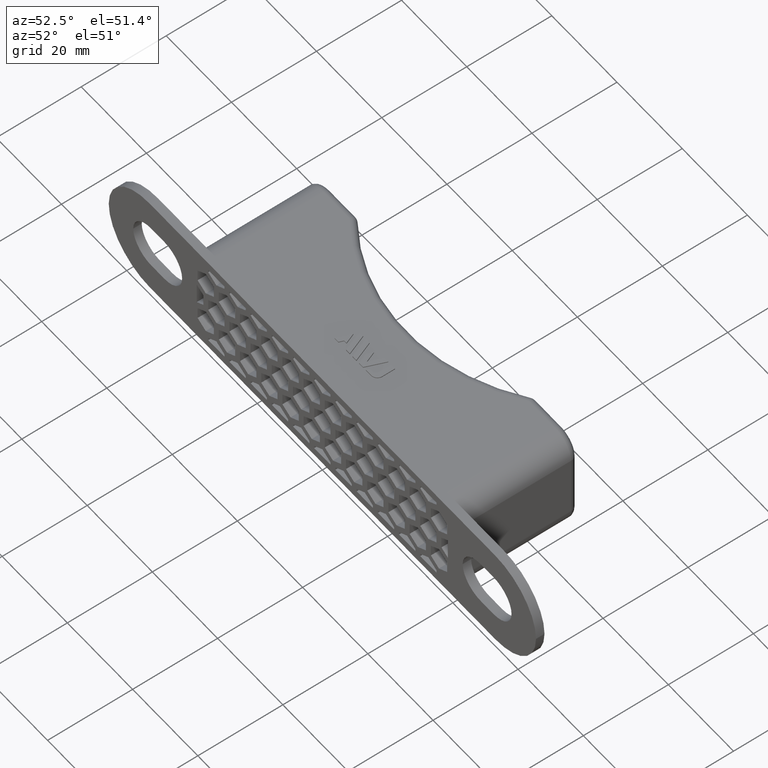
[diagram: clean part render]
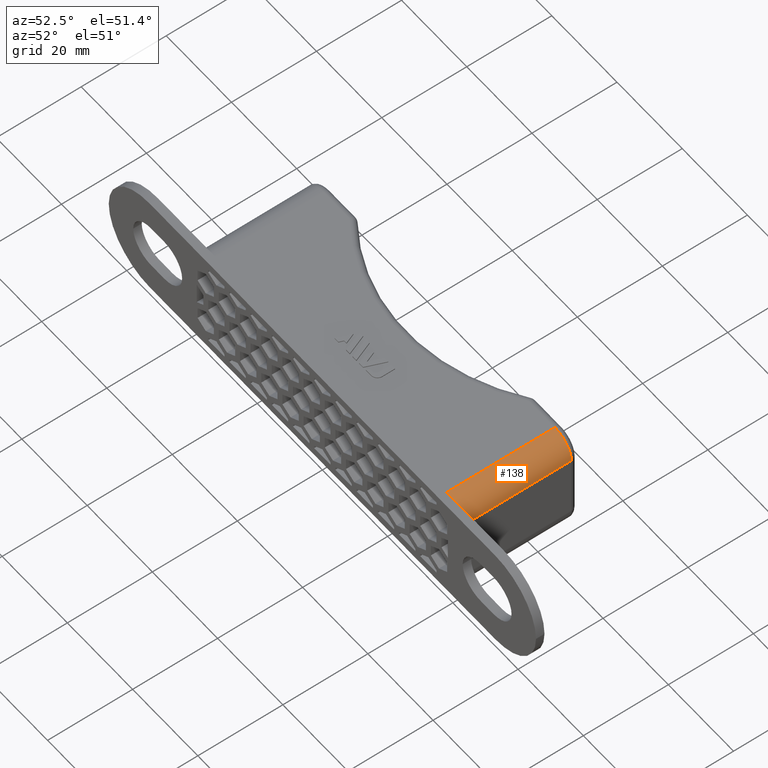
[diagram: same view with one face highlighted and labeled with its STEP entity id]
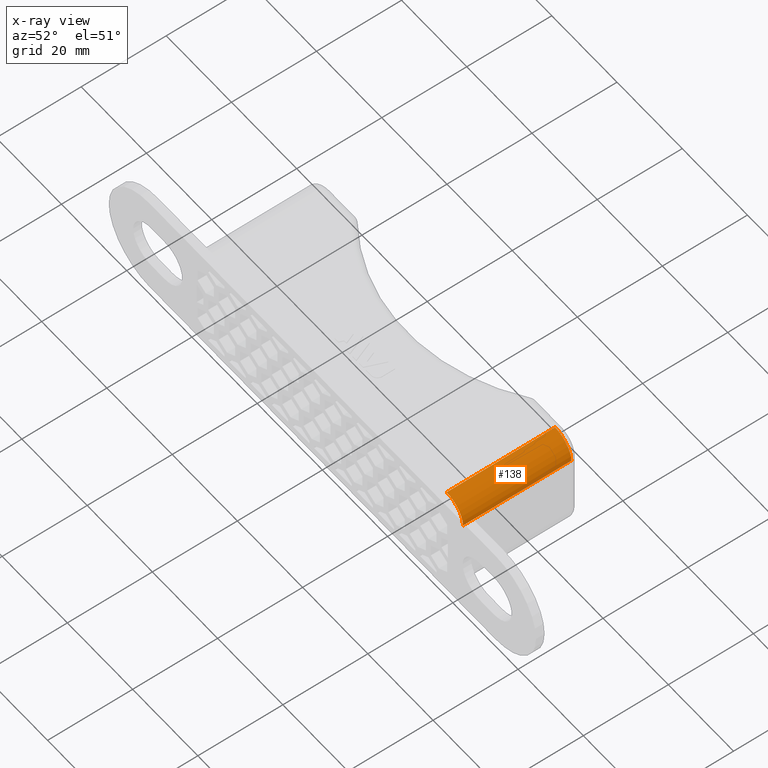
[diagram: x-ray of the same camera — body ghosted, the highlighted face saturated]
A machine part, auxiliary view. The second image highlights one B-rep face of the part: STEP entity #138.
The next image is the same camera in x-ray: the body ghosted, the highlighted face saturated — about 0% of this face is hidden behind the body in this view.
In plain terms, the highlighted cylindrical surface (edge-blend (fillet) strip) has radius 5 mm, axis along (0, 1, 0).
Its self-contained STEP definition (entity closure, byte-faithful):
#138 = ADVANCED_FACE( '', ( #748 ), #749, .T. );
#748 = FACE_OUTER_BOUND( '', #1772, .T. );
#749 = CYLINDRICAL_SURFACE( '', #1773, 5.00000000000000 );
#1772 = EDGE_LOOP( '', ( #3469, #3470, #3471, #3472 ) );
#1773 = AXIS2_PLACEMENT_3D( '', #3473, #3474, #3475 );
#3469 = ORIENTED_EDGE( '', *, *, #6910, .F. );
#3470 = ORIENTED_EDGE( '', *, *, #7032, .T. );
#3471 = ORIENTED_EDGE( '', *, *, #6487, .F. );
#3472 = ORIENTED_EDGE( '', *, *, #6915, .F. );
#3473 = CARTESIAN_POINT( '', ( 35.5000000000000, 65.0500000000000, 7.50000000000000 ) );
#3474 = DIRECTION( '', ( 6.93889390390723E-017, 1.00000000000000, 0.000000000000000 ) );
#3475 = DIRECTION( '', ( 1.00000000000000, -6.93889390390723E-017, 0.000000000000000 ) );
#6487 = EDGE_CURVE( '', #7721, #7723, #7724, .T. );
#6910 = EDGE_CURVE( '', #8546, #8548, #8549, .F. );
#6915 = EDGE_CURVE( '', #8548, #7721, #8555, .F. );
#7032 = EDGE_CURVE( '', #8546, #7723, #8758, .F. );
#7721 = VERTEX_POINT( '', #9758 );
#7723 = VERTEX_POINT( '', #9761 );
#7724 = LINE( '', #9762, #9763 );
#8546 = VERTEX_POINT( '', #10970 );
#8548 = VERTEX_POINT( '', #10973 );
#8549 = LINE( '', #10974, #10975 );
#8555 = CIRCLE( '', #10982, 5.00000000000000 );
#8758 = CIRCLE( '', #11256, 5.00000000000000 );
#9758 = CARTESIAN_POINT( '', ( 35.5000000000000, 1.99999999999999, 12.5000000000000 ) );
#9761 = CARTESIAN_POINT( '', ( 35.5000000000000, 27.5000000000000, 12.5000000000000 ) );
#9762 = CARTESIAN_POINT( '', ( 35.5000000000000, 29.0000000000000, 12.5000000000000 ) );
#9763 = VECTOR( '', #12735, 1000.00000000000 );
#10970 = CARTESIAN_POINT( '', ( 40.5000000000000, 27.5000000000000, 7.50000000000000 ) );
#10973 = CARTESIAN_POINT( '', ( 40.5000000000000, 1.99999999999999, 7.50000000000000 ) );
#10974 = CARTESIAN_POINT( '', ( 40.5000000000000, 1.99999999999999, 7.50000000000000 ) );
#10975 = VECTOR( '', #13230, 1000.00000000000 );
#10982 = AXIS2_PLACEMENT_3D( '', #13241, #13242, #13243 );
#11256 = AXIS2_PLACEMENT_3D( '', #13450, #13451, #13452 );
#12735 = DIRECTION( '', ( 6.93889390390723E-017, 1.00000000000000, 0.000000000000000 ) );
#13230 = DIRECTION( '', ( 6.93889390390723E-017, 1.00000000000000, 0.000000000000000 ) );
#13241 = CARTESIAN_POINT( '', ( 35.5000000000000, 1.99999999999999, 7.50000000000000 ) );
#13242 = DIRECTION( '', ( 0.000000000000000, 1.00000000000000, 0.000000000000000 ) );
#13243 = DIRECTION( '', ( 0.000000000000000, 0.000000000000000, 1.00000000000000 ) );
#13450 = CARTESIAN_POINT( '', ( 35.5000000000000, 27.5000000000000, 7.50000000000000 ) );
#13451 = DIRECTION( '', ( 0.000000000000000, 1.00000000000000, 0.000000000000000 ) );
#13452 = DIRECTION( '', ( 0.000000000000000, 0.000000000000000, 1.00000000000000 ) );